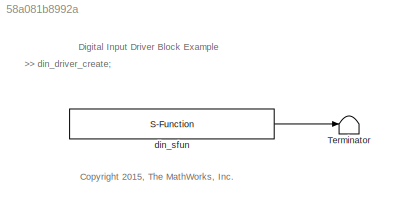
MODEL slx_58a081b8992a
KIND model
BLOCK [Terminator] Terminator
BLOCK [S-Function] din_sfun
  FunctionName = din_sfun
  Parameters = SParameter1
  Ports = [0, 1]
ANNOTATION (root): >> din_driver_create;
ANNOTATION (root): <copyright redacted>
ANNOTATION (root): Digital Input Driver Block Example
LINE din_sfun:1 -> Terminator:1
